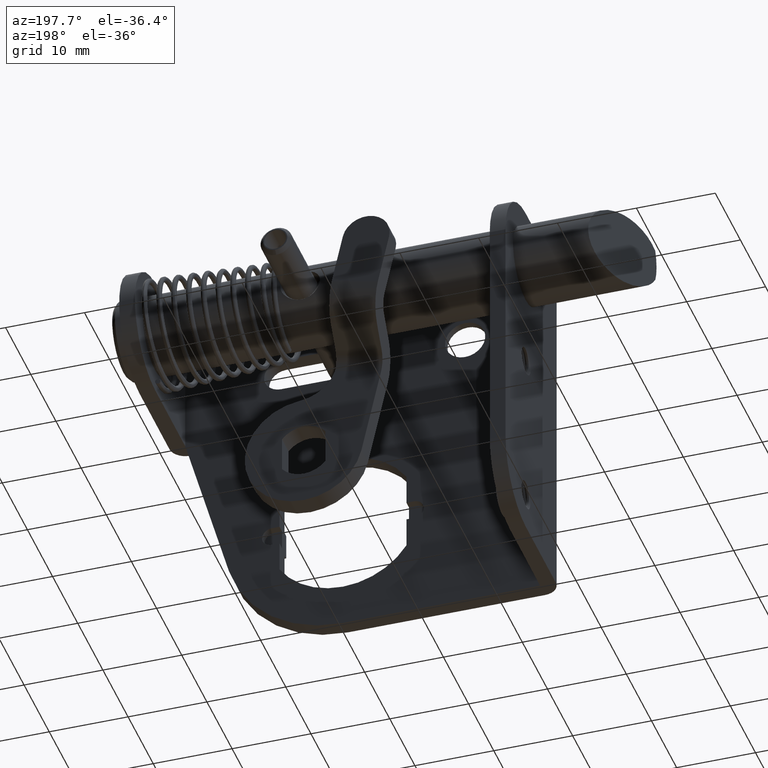
[diagram: clean part render]
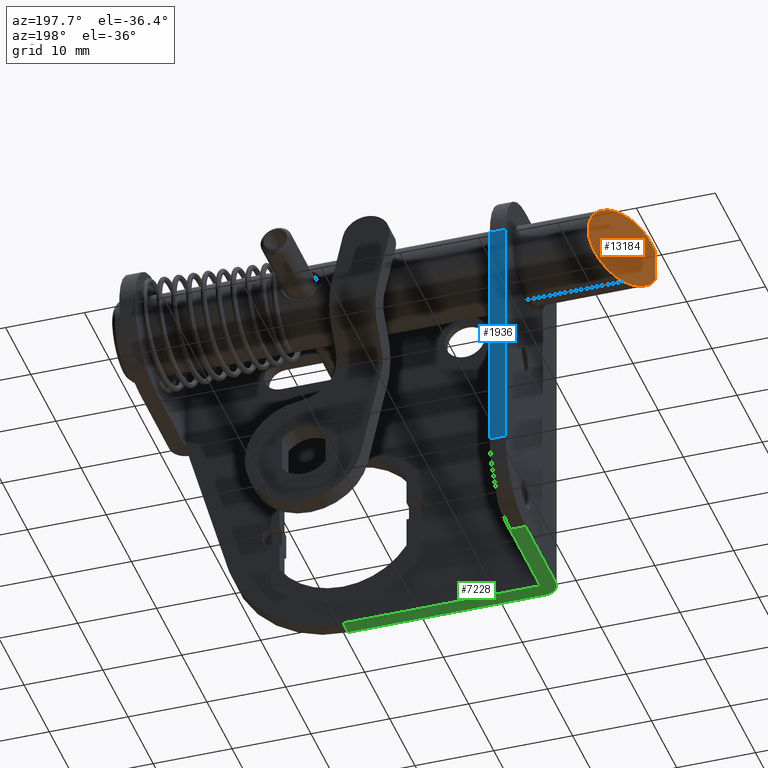
[diagram: same view with three faces highlighted in distinct colors, each labeled with its STEP entity id]
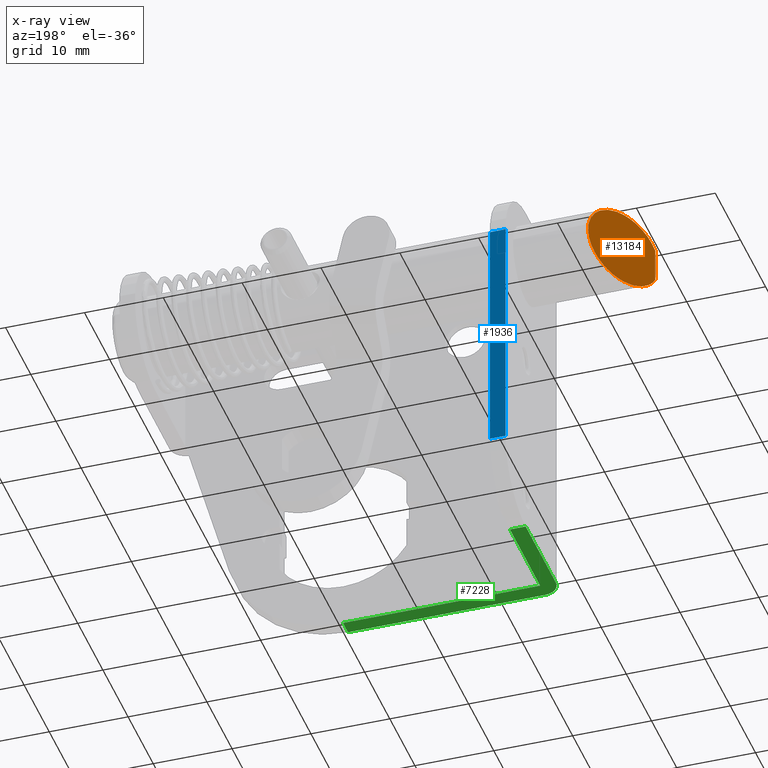
[diagram: x-ray of the same camera — body ghosted, the three highlighted faces saturated]
A machine part, auxiliary view with three faces highlighted in distinct colors.
The next image is the same camera in x-ray (body ghosted, the three faces saturated) — at least one of them is partly hidden behind the body in this view.
Their STEP definitions:

[orange] entity #13184 — the highlighted planar face has unit normal (0.866, -0.5, 0).
#299 =( BOUNDED_CURVE ( )  B_SPLINE_CURVE ( 3, ( #15630, #15045, #11644, #458 ),
 .UNSPECIFIED., .F., .F. ) 
 B_SPLINE_CURVE_WITH_KNOTS ( ( 4, 4 ),
 ( 0.4510268118019474200, 1.570796326794896800 ),
 .UNSPECIFIED. ) 
 CURVE ( )  GEOMETRIC_REPRESENTATION_ITEM ( )  RATIONAL_B_SPLINE_CURVE ( ( 1.000000000000000000, 0.8982108804096263800, 0.8982108804096263800, 1.000000000000000000 ) ) 
 REPRESENTATION_ITEM ( '' )  );
#458 = CARTESIAN_POINT ( 'NONE',  ( -59.05192378876469700, -3.469446951953615000E-015, -1.749999999980020200 ) ) ;
#1639 = FACE_OUTER_BOUND ( 'NONE', #15510, .T. ) ;
#1694 = EDGE_CURVE ( 'NONE', #8893, #3473, #299, .T. ) ;
#3010 = EDGE_CURVE ( 'NONE', #12312, #9885, #10944, .T. ) ;
#3141 = ORIENTED_EDGE ( 'NONE', *, *, #4341, .F. ) ;
#3473 = VERTEX_POINT ( 'NONE', #12991 ) ;
#4341 = EDGE_CURVE ( 'NONE', #8893, #9885, #10467, .T. ) ;
#4368 = CARTESIAN_POINT ( 'NONE',  ( -53.27842109689972700, 10.00000000000000200, -1.749999999980020900 ) ) ;
#4370 = CARTESIAN_POINT ( 'NONE',  ( -59.05192378876469700, -2.857123552379938100E-015, -11.74999999998002000 ) ) ;
#5287 = AXIS2_PLACEMENT_3D ( 'NONE', #15662, #15707, #8419 ) ;
#5917 = PLANE ( 'NONE',  #5287 ) ;
#6384 = CARTESIAN_POINT ( 'NONE',  ( -61.15399786158310700, -3.640899095414444000, -10.70327085217389800 ) ) ;
#6618 = CARTESIAN_POINT ( 'NONE',  ( -61.65000000009680300, -4.499999999987614400, -8.929449471775940900 ) ) ;
#6739 =( BOUNDED_CURVE ( )  B_SPLINE_CURVE ( 3, ( #10454, #4368, #14120, #6828 ),
 .UNSPECIFIED., .F., .T. ) 
 B_SPLINE_CURVE_WITH_KNOTS ( ( 4, 4 ),
 ( 1.570796326794896800, 4.712388980384689700 ),
 .UNSPECIFIED. ) 
 CURVE ( )  GEOMETRIC_REPRESENTATION_ITEM ( )  RATIONAL_B_SPLINE_CURVE ( ( 1.000000000000000000, 0.3333333333333333700, 0.3333333333333333700, 1.000000000000000000 ) ) 
 REPRESENTATION_ITEM ( '' )  );
#6828 = CARTESIAN_POINT ( 'NONE',  ( -59.05192378876469700, -2.857123552379938100E-015, -11.74999999998002000 ) ) ;
#7149 = ORIENTED_EDGE ( 'NONE', *, *, #3010, .T. ) ;
#8419 = DIRECTION ( 'NONE',  ( 0.4999999999979679000, 0.8660254037856118800, 0.0000000000000000000 ) ) ;
#8893 = VERTEX_POINT ( 'NONE', #12968 ) ;
#9885 = VERTEX_POINT ( 'NONE', #6618 ) ;
#10071 = CARTESIAN_POINT ( 'NONE',  ( -59.05192378876469700, -2.857123552379938100E-015, -11.74999999998002000 ) ) ;
#10226 = DIRECTION ( 'NONE',  ( 0.0000000000000000000, 0.0000000000000000000, -1.000000000000000000 ) ) ;
#10273 = EDGE_CURVE ( 'NONE', #3473, #12312, #6739, .T. ) ;
#10454 = CARTESIAN_POINT ( 'NONE',  ( -59.05192378876469700, -3.469446951953615000E-015, -1.749999999980020200 ) ) ;
#10467 = LINE ( 'NONE', #15059, #13324 ) ;
#10944 =( BOUNDED_CURVE ( )  B_SPLINE_CURVE ( 3, ( #10071, #12450, #6384, #11287 ),
 .UNSPECIFIED., .F., .F. ) 
 B_SPLINE_CURVE_WITH_KNOTS ( ( 4, 4 ),
 ( 4.712388980384689700, 5.832158495377639100 ),
 .UNSPECIFIED. ) 
 CURVE ( )  GEOMETRIC_REPRESENTATION_ITEM ( )  RATIONAL_B_SPLINE_CURVE ( ( 1.000000000000000000, 0.8982108804096263800, 0.8982108804096263800, 1.000000000000000000 ) ) 
 REPRESENTATION_ITEM ( '' )  );
#11287 = CARTESIAN_POINT ( 'NONE',  ( -61.65000000009680300, -4.499999999987614400, -8.929449471775940900 ) ) ;
#11644 = CARTESIAN_POINT ( 'NONE',  ( -60.18983073483618500, -1.970912644892045800, -1.749999999980019100 ) ) ;
#12312 = VERTEX_POINT ( 'NONE', #4370 ) ;
#12450 = CARTESIAN_POINT ( 'NONE',  ( -60.18983073483618500, -1.970912644892045800, -11.74999999998002300 ) ) ;
#12968 = CARTESIAN_POINT ( 'NONE',  ( -61.65000000009680300, -4.499999999987614400, -4.570550528184099900 ) ) ;
#12991 = CARTESIAN_POINT ( 'NONE',  ( -59.05192378876469700, -3.469446951953615000E-015, -1.749999999980020200 ) ) ;
#13184 = ADVANCED_FACE ( 'NONE', ( #1639 ), #5917, .F. ) ;
#13324 = VECTOR ( 'NONE', #10226, 1000.000000000000000 ) ;
#14086 = ORIENTED_EDGE ( 'NONE', *, *, #10273, .T. ) ;
#14120 = CARTESIAN_POINT ( 'NONE',  ( -53.27842109689972700, 10.00000000000000400, -11.74999999998002000 ) ) ;
#15045 = CARTESIAN_POINT ( 'NONE',  ( -61.15399786158310700, -3.640899095414444000, -2.796729147786146500 ) ) ;
#15059 = CARTESIAN_POINT ( 'NONE',  ( -61.65000000009690200, -4.499999999987614400, 200969.2500000000000 ) ) ;
#15317 = ORIENTED_EDGE ( 'NONE', *, *, #1694, .T. ) ;
#15510 = EDGE_LOOP ( 'NONE', ( #15317, #14086, #7149, #3141 ) ) ;
#15630 = CARTESIAN_POINT ( 'NONE',  ( -61.65000000009680300, -4.499999999987614400, -4.570550528184099900 ) ) ;
#15662 = CARTESIAN_POINT ( 'NONE',  ( -56.16517244283230100, 5.000000000000000000, 200969.2500000000000 ) ) ;
#15707 = DIRECTION ( 'NONE',  ( 0.8660254037856118800, -0.4999999999979679000, 0.0000000000000000000 ) ) ;

[blue] entity #1936 — the highlighted planar face has unit normal (0, -1, 0).
#486 = ORIENTED_EDGE ( 'NONE', *, *, #776, .T. ) ;
#683 = EDGE_CURVE ( 'NONE', #14740, #10779, #4992, .T. ) ;
#776 = EDGE_CURVE ( 'NONE', #10779, #8645, #7465, .T. ) ;
#1084 = ORIENTED_EDGE ( 'NONE', *, *, #1475, .T. ) ;
#1180 = CARTESIAN_POINT ( 'NONE',  ( -44.64999999999550100, 7.999999999986209300, -6.750000000338040700 ) ) ;
#1195 = EDGE_CURVE ( 'NONE', #8645, #11033, #8421, .T. ) ;
#1475 = EDGE_CURVE ( 'NONE', #11033, #14740, #4025, .T. ) ;
#1838 = ORIENTED_EDGE ( 'NONE', *, *, #683, .T. ) ;
#1936 = ADVANCED_FACE ( 'NONE', ( #7456 ), #13134, .F. ) ;
#2839 = DIRECTION ( 'NONE',  ( -1.000000000000000000, 0.0000000000000000000, 0.0000000000000000000 ) ) ;
#3011 = CARTESIAN_POINT ( 'NONE',  ( -46.64999999980710000, 7.999999999986209300, -45.75000000044180100 ) ) ;
#3368 = ORIENTED_EDGE ( 'NONE', *, *, #1195, .T. ) ;
#3540 = AXIS2_PLACEMENT_3D ( 'NONE', #12647, #13079, #12707 ) ;
#4025 = LINE ( 'NONE', #3011, #10522 ) ;
#4797 = VECTOR ( 'NONE', #2839, 1000.000000000000000 ) ;
#4992 = LINE ( 'NONE', #9672, #13955 ) ;
#7456 = FACE_OUTER_BOUND ( 'NONE', #8481, .T. ) ;
#7465 = LINE ( 'NONE', #9292, #10728 ) ;
#7573 = CARTESIAN_POINT ( 'NONE',  ( -19.64999999992185300, 7.999999999986189700, -37.75000000044180100 ) ) ;
#8421 = LINE ( 'NONE', #7573, #4797 ) ;
#8481 = EDGE_LOOP ( 'NONE', ( #1084, #1838, #486, #3368 ) ) ;
#8645 = VERTEX_POINT ( 'NONE', #10470 ) ;
#9292 = CARTESIAN_POINT ( 'NONE',  ( -44.64999999999550100, 7.999999999986209300, 1.249999999661960200 ) ) ;
#9672 = CARTESIAN_POINT ( 'NONE',  ( -19.64999999988634700, 7.999999999986189700, -6.750000000374989800 ) ) ;
#10470 = CARTESIAN_POINT ( 'NONE',  ( -44.64999999999550100, 7.999999999986209300, -37.75000000044180100 ) ) ;
#10522 = VECTOR ( 'NONE', #13650, 1000.000000000000000 ) ;
#10728 = VECTOR ( 'NONE', #12685, 1000.000000000000000 ) ;
#10779 = VERTEX_POINT ( 'NONE', #1180 ) ;
#10961 = CARTESIAN_POINT ( 'NONE',  ( -46.64999999980130200, 7.999999999986209300, -6.750000000335089300 ) ) ;
#11033 = VERTEX_POINT ( 'NONE', #11193 ) ;
#11193 = CARTESIAN_POINT ( 'NONE',  ( -46.64999999980590000, 7.999999999986209300, -37.75000000044180100 ) ) ;
#12647 = CARTESIAN_POINT ( 'NONE',  ( -19.64999999992185300, 7.999999999986189700, -30.75000000007850100 ) ) ;
#12685 = DIRECTION ( 'NONE',  ( -0.0000000000000000000, -0.0000000000000000000, -1.000000000000000000 ) ) ;
#12707 = DIRECTION ( 'NONE',  ( 0.0000000000000000000, 0.0000000000000000000, -1.000000000000000000 ) ) ;
#13079 = DIRECTION ( 'NONE',  ( 0.0000000000000000000, -1.000000000000000000, 0.0000000000000000000 ) ) ;
#13134 = PLANE ( 'NONE',  #3540 ) ;
#13650 = DIRECTION ( 'NONE',  ( 1.487433108121418000E-013, -0.0000000000000000000, 1.000000000000000000 ) ) ;
#13955 = VECTOR ( 'NONE', #14352, 1000.000000000000000 ) ;
#14352 = DIRECTION ( 'NONE',  ( 1.000000000000000000, 0.0000000000000000000, -1.477984401676576000E-012 ) ) ;
#14740 = VERTEX_POINT ( 'NONE', #10961 ) ;

[green] entity #7228 — the highlighted planar face has unit normal (0, 0, -1).
#677 = EDGE_CURVE ( 'NONE', #10553, #2089, #14340, .T. ) ;
#1088 = LINE ( 'NONE', #13531, #6025 ) ;
#1395 = DIRECTION ( 'NONE',  ( -1.000000000000000000, -0.0000000000000000000, -0.0000000000000000000 ) ) ;
#1560 = AXIS2_PLACEMENT_3D ( 'NONE', #11954, #4650, #13174 ) ;
#2089 = VERTEX_POINT ( 'NONE', #7104 ) ;
#2229 = VECTOR ( 'NONE', #4680, 1000.000000000000000 ) ;
#2602 = LINE ( 'NONE', #5906, #2229 ) ;
#2864 = VERTEX_POINT ( 'NONE', #9520 ) ;
#2945 = VERTEX_POINT ( 'NONE', #12420 ) ;
#3055 = DIRECTION ( 'NONE',  ( 0.0000000000000000000, 1.000000000000000000, 0.0000000000000000000 ) ) ;
#3713 = EDGE_LOOP ( 'NONE', ( #14035, #15769, #11957, #11313, #5193, #9505, #5603 ) ) ;
#3801 = DIRECTION ( 'NONE',  ( 0.0000000000000000000, -1.000000000000000000, 0.0000000000000000000 ) ) ;
#4096 = DIRECTION ( 'NONE',  ( 0.0000000000000000000, 0.0000000000000000000, -1.000000000000000000 ) ) ;
#4283 = DIRECTION ( 'NONE',  ( 1.000000000000000000, 0.0000000000000000000, 0.0000000000000000000 ) ) ;
#4614 = VECTOR ( 'NONE', #4283, 1000.000000000000000 ) ;
#4650 = DIRECTION ( 'NONE',  ( 0.0000000000000000000, 0.0000000000000000000, -1.000000000000000000 ) ) ;
#4680 = DIRECTION ( 'NONE',  ( 0.0000000000000000000, 1.000000000000000000, 0.0000000000000000000 ) ) ;
#4940 = EDGE_CURVE ( 'NONE', #2945, #10553, #7035, .T. ) ;
#5023 = CARTESIAN_POINT ( 'NONE',  ( -44.64999999999550100, 985.9999999999860200, -45.75000000044180100 ) ) ;
#5193 = ORIENTED_EDGE ( 'NONE', *, *, #11892, .F. ) ;
#5258 = VERTEX_POINT ( 'NONE', #10519 ) ;
#5268 = CARTESIAN_POINT ( 'NONE',  ( -19.65000000004294700, -1012.000000000014000, -45.75000000044180100 ) ) ;
#5603 = ORIENTED_EDGE ( 'NONE', *, *, #9041, .T. ) ;
#5906 = CARTESIAN_POINT ( 'NONE',  ( -19.65000000004300100, -1012.000000000014000, -45.75000000044180100 ) ) ;
#6025 = VECTOR ( 'NONE', #1395, 1000.000000000000000 ) ;
#6076 = EDGE_CURVE ( 'NONE', #2089, #5258, #11778, .T. ) ;
#6502 = CARTESIAN_POINT ( 'NONE',  ( -44.64999999980710000, -14.00000000001370100, -45.75000000044180100 ) ) ;
#6613 = DIRECTION ( 'NONE',  ( -1.000000000000000000, -0.0000000000000000000, -0.0000000000000000000 ) ) ;
#6818 = VECTOR ( 'NONE', #6613, 1000.000000000000000 ) ;
#7035 = LINE ( 'NONE', #11587, #7402 ) ;
#7104 = CARTESIAN_POINT ( 'NONE',  ( -44.64999999999550100, -1.379799052791952000E-011, -45.75000000044180100 ) ) ;
#7228 = ADVANCED_FACE ( 'NONE', ( #14062 ), #10128, .T. ) ;
#7389 = EDGE_CURVE ( 'NONE', #2864, #5258, #9681, .T. ) ;
#7402 = VECTOR ( 'NONE', #3055, 1000.000000000000000 ) ;
#7893 = VERTEX_POINT ( 'NONE', #15747 ) ;
#9041 = EDGE_CURVE ( 'NONE', #9737, #2945, #12135, .T. ) ;
#9505 = ORIENTED_EDGE ( 'NONE', *, *, #10969, .T. ) ;
#9520 = CARTESIAN_POINT ( 'NONE',  ( -19.65000000004300100, -12.00000000001370100, -45.75000000044180100 ) ) ;
#9681 = LINE ( 'NONE', #15120, #6818 ) ;
#9737 = VERTEX_POINT ( 'NONE', #6502 ) ;
#10128 = PLANE ( 'NONE',  #12258 ) ;
#10205 = CARTESIAN_POINT ( 'NONE',  ( -19.65000000004294700, -1.390901283038204300E-011, -45.75000000044180100 ) ) ;
#10519 = CARTESIAN_POINT ( 'NONE',  ( -44.64999999999550100, -12.00000000001380100, -45.75000000044180100 ) ) ;
#10553 = VERTEX_POINT ( 'NONE', #15553 ) ;
#10969 = EDGE_CURVE ( 'NONE', #7893, #9737, #1088, .T. ) ;
#11313 = ORIENTED_EDGE ( 'NONE', *, *, #7389, .F. ) ;
#11587 = CARTESIAN_POINT ( 'NONE',  ( -46.64999999980720000, -1012.000000000014000, -45.75000000044180100 ) ) ;
#11778 = LINE ( 'NONE', #5023, #14633 ) ;
#11892 = EDGE_CURVE ( 'NONE', #7893, #2864, #2602, .T. ) ;
#11954 = CARTESIAN_POINT ( 'NONE',  ( -44.64999999980710000, -12.00000000001370100, -45.75000000044180100 ) ) ;
#11957 = ORIENTED_EDGE ( 'NONE', *, *, #6076, .T. ) ;
#12135 = CIRCLE ( 'NONE', #1560, 2.000000000000001800 ) ;
#12258 = AXIS2_PLACEMENT_3D ( 'NONE', #5268, #4096, #12620 ) ;
#12420 = CARTESIAN_POINT ( 'NONE',  ( -46.64999999980720000, -12.00000000001370100, -45.75000000044180100 ) ) ;
#12620 = DIRECTION ( 'NONE',  ( -1.000000000000000000, 0.0000000000000000000, 0.0000000000000000000 ) ) ;
#13174 = DIRECTION ( 'NONE',  ( -1.000000000000000000, 0.0000000000000000000, 0.0000000000000000000 ) ) ;
#13531 = CARTESIAN_POINT ( 'NONE',  ( -19.65000000004294700, -14.00000000001370100, -45.75000000044180100 ) ) ;
#14035 = ORIENTED_EDGE ( 'NONE', *, *, #4940, .T. ) ;
#14062 = FACE_OUTER_BOUND ( 'NONE', #3713, .T. ) ;
#14340 = LINE ( 'NONE', #10205, #4614 ) ;
#14633 = VECTOR ( 'NONE', #3801, 1000.000000000000000 ) ;
#15120 = CARTESIAN_POINT ( 'NONE',  ( -19.65000000004294700, -12.00000000001370100, -45.75000000044180100 ) ) ;
#15553 = CARTESIAN_POINT ( 'NONE',  ( -46.64999999980720000, -1.390901283038204300E-011, -45.75000000044180100 ) ) ;
#15747 = CARTESIAN_POINT ( 'NONE',  ( -19.65000000004300100, -14.00000000001370100, -45.75000000044180100 ) ) ;
#15769 = ORIENTED_EDGE ( 'NONE', *, *, #677, .T. ) ;